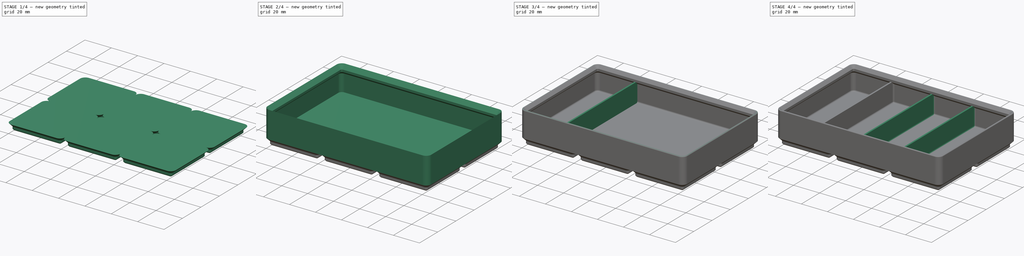
[diagram: build sequence overview — one tinted view per stage of 4, left to right]
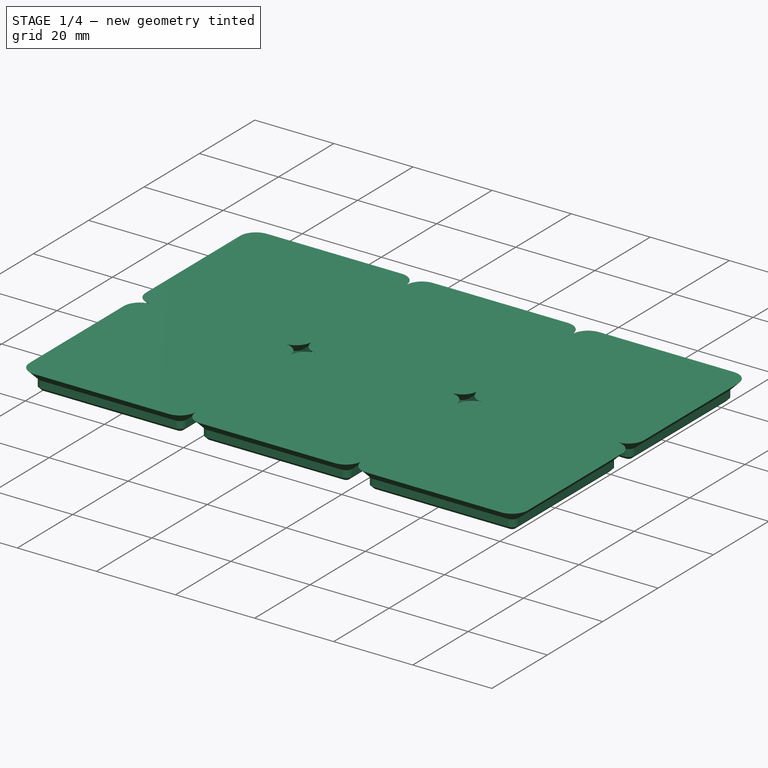
[diagram: stage 1 of 4 — iso view after this stage's code; geometry added in this stage tinted green]
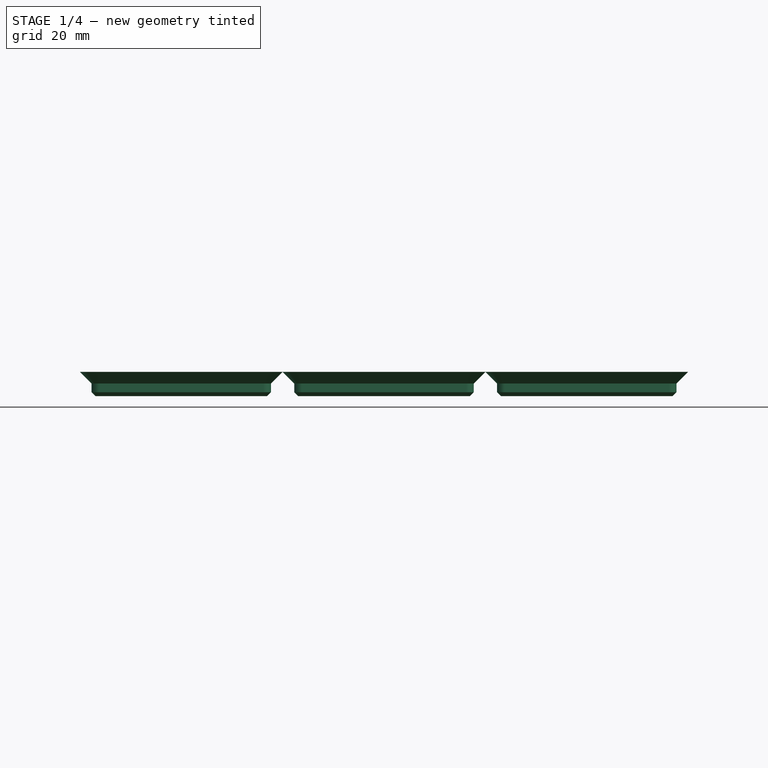
[diagram: stage 1 of 4 — front view after this stage's code; geometry added in this stage tinted green]
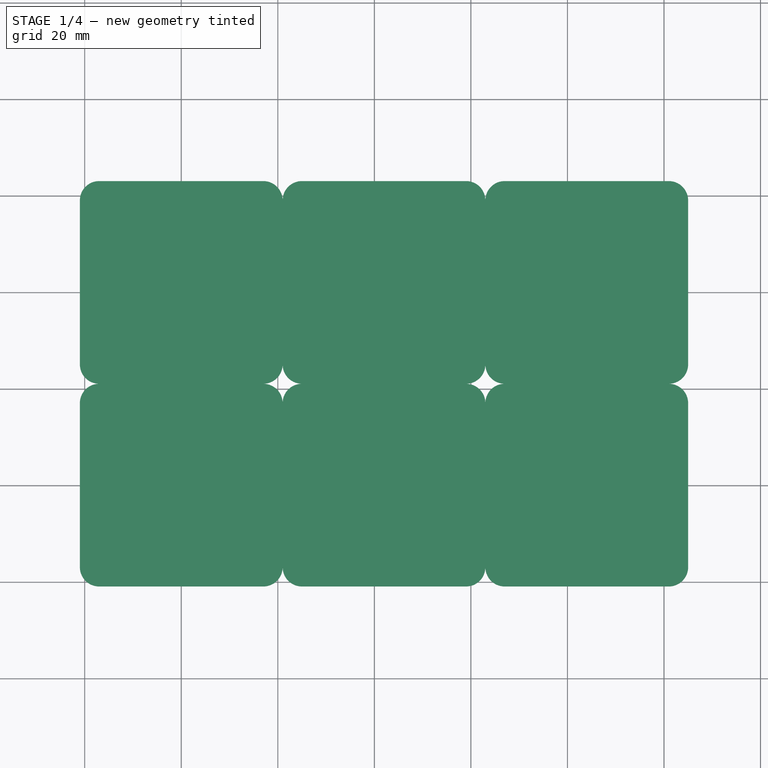
[diagram: stage 1 of 4 — top view after this stage's code; geometry added in this stage tinted green]
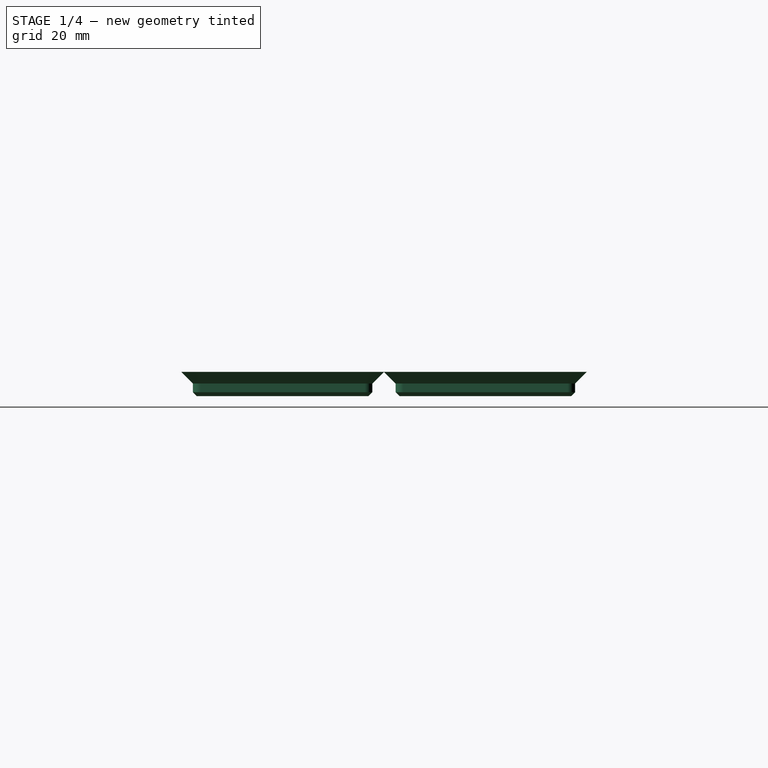
[diagram: stage 1 of 4 — right view after this stage's code; geometry added in this stage tinted green]
FCSTD DOCUMENT  (FreeCAD 2022.407R28576 (Git))
Label: Gridfinity
License: All rights reserved
LicenseURL: http://en.wikipedia.org/wiki/All_rights_reserved
objects: Sketcher::SketchObject×7, PartDesign::Pad×4, PartDesign::LinearPattern×3, PartDesign::Fillet×3, PartDesign::Line×2, PartDesign::Plane×2, Spreadsheet::Sheet×1, PartDesign::SubtractivePipe×1, PartDesign::MultiTransform×1, PartDesign::Pocket×1, PartDesign::AdditivePipe×1, PartDesign::Body×1, App::Part×1
note: 54 computed .brp shape members not serialized (recipe doc carries the construction recipe); baked Part::Feature solids carry a one-line shape summary decoded from their .brp

FEATURE [Sketcher::SketchObject] Sketch  label="ModuleBase"
  FullyConstrained = true
  MapMode = 5
  Support = -> [XY_Plane]
  TreeRank = 14
  expr: Constraints[8] = Spreadsheet.slotDimension
  expr: Constraints[9] = Spreadsheet.slotDimension
  sketch-geometry (4):
    g0: LineSegment StartX=-21 StartY=21 StartZ=0 EndX=21 EndY=21 EndZ=0
    g1: LineSegment StartX=21 StartY=21 StartZ=0 EndX=21 EndY=-21 EndZ=0
    g2: LineSegment StartX=21 StartY=-21 StartZ=0 EndX=-21 EndY=-21 EndZ=0
    g3: LineSegment StartX=-21 StartY=-21 StartZ=0 EndX=-21 EndY=21 EndZ=0
  constraints (11):
    c: Coincident(g0,g1)
    c: Coincident(g1,g2)
    c: Coincident(g2,g3)
    c: Coincident(g3,g0)
    c: Horizontal(g0)
    c: Horizontal(g2)
    c: Vertical(g1)
    c: Vertical(g3)
    c: DistanceX(g0,g0) = 42
    c: DistanceY(g1,g1) = 42
    c: Symmetric(g0,g1,g-1)
FEATURE [Spreadsheet::Sheet] Spreadsheet
  PythonMode = false
  ShowCells = 0
  TreeRank = 15
  cells = A1=slotsWide; B1(slotsWide)=3; A2=slotsHigh; B2(slotsHigh)=0.5; A3=SlotsDeep; B3(SlotsDeep)=2; A4=slotDimension; B4(slotDimension)==42mm; A5=nestingDepth; B5(nestingDepth)==5mm; A6=nestingRimWidth; B6(nestingRimWidth)==2.4mm; A7=nestingClearance; B7(nestingClearance)==0.25mm; A8=cornerFillet; B8(cornerFillet)==4mm; A9=wallThickkness; B9(wallThickkness)==1.2mm; A10=nestingBottomFillet; B10(nestingBottomFillet)==0.8mm; A11=compartments; B11(compartments)=4; A12=compartmentOffset; B12(compartmentOffset)==(slotsWide * slotDimension - wallThickkness) / compartments; A13=compartmentInnerWidth; B13(compartmentInnerWidth)==compartmentOffset - wallThickkness; A14=comparmentSideFillet; B14(comparmentSideFillet)==1mm; A15=compartmentFrontFillet; B15(compartmentFrontFillet)==5mm; A16=topEdgeFillet; B16(topEdgeFillet)==0.6mm
FEATURE [PartDesign::Pad] Pad  label="ModuleBasePad"
  ClaimChildren = false
  Direction = (1,1,1)
  Fit = 0
  FitJoin = 0
  InnerFit = 0
  InnerFitJoin = 0
  InnerTaperAngle = 0
  InnerTaperAngleRev = 0
  Length = 5
  Length2 = 100
  Linearize = true
  NewSolid = false
  Profile = -> Sketch
  Refine = true
  Suppress = false
  TreeRank = 16
  Type = 0
  _ProfileBasedVersion = 1
  expr: Length = Spreadsheet.nestingDepth
FEATURE [Sketcher::SketchObject] Sketch001  label="nesting cutout"
  ExternalGeometry = -> [Pad]
  FullyConstrained = true
  MapMode = 5
  Placement = pos=(0,0,0) rot=(1,0,0;1.5708rad)
  Support = -> [XZ_Plane]
  TreeRank = 19
  expr: Constraints[14] = Spreadsheet.nestingBottomFillet
  expr: Constraints[8] = Spreadsheet.nestingRimWidth
  sketch-geometry (10):
    g0: LineSegment [constr] StartX=-21 StartY=5 StartZ=0 EndX=-21 EndY=-4.4e-15 EndZ=0
    g1: LineSegment StartX=-21 StartY=-4.7e-15 StartZ=0 EndX=-18.6 EndY=0 EndZ=0
    g2: LineSegment StartX=-18.6 StartY=0.8 StartZ=0 EndX=-18.6 EndY=2.6 EndZ=0
    g3: LineSegment StartX=-18.6 StartY=2.6 StartZ=0 EndX=-21 EndY=5 EndZ=0
    g4: LineSegment StartX=-18.6 StartY=0 StartZ=0 EndX=-17.8 EndY=0 EndZ=0
    g5: LineSegment StartX=-17.8 StartY=0 StartZ=0 EndX=-18.6 EndY=0.8 EndZ=0
    g6: LineSegment StartX=-21 StartY=5 StartZ=0 EndX=-26 EndY=5 EndZ=0
    g7: LineSegment StartX=-26 StartY=5 StartZ=0 EndX=-26 EndY=0 EndZ=0
    g8: LineSegment StartX=-26 StartY=0 StartZ=0 EndX=-21 EndY=0 EndZ=0
    g9: LineSegment [constr] StartX=-21 StartY=0 StartZ=0 EndX=-21 EndY=5 EndZ=0
  constraints (27):
    c: Coincident(g0,g-3)
    c: Coincident(g0,g-4)
    c: Coincident(g0,g1)
    c: PointOnObject(g1,g-1)
    c: Vertical(g2)
    c: Coincident(g2,g3)
    c: Coincident(g3,g0)
    c: Angle(g0,g3) = 0.785398
    c: DistanceX(g1,g1) = 2.4
    c: Coincident(g4,g1)
    c: Horizontal(g4)
    c: Coincident(g5,g4)
    c: Angle(g5,g4) = 0.785398
    c: Coincident(g2,g5)
    c: DistanceX(g4,g4) = 0.8
    c: Vertical(g1,g2)
    c: Coincident(g6,g7)
    c: Coincident(g7,g8)
    c: Coincident(g8,g9)
    c: Coincident(g9,g6)
    c: Horizontal(g6)
    c: Horizontal(g8)
    c: Vertical(g7)
    c: Vertical(g9)
    c: Coincident(g6,g3)
    c: PointOnObject(g7,g-1)
    c: Equal(g6,g9)
FEATURE [Sketcher::SketchObject] Sketch002  label="nesting path"
  ExternalGeometry = -> [Pad]
  FullyConstrained = true
  MapMode = 5
  Support = -> [XY_Plane]
  TreeRank = 18
  expr: Constraints[25] = Spreadsheet.cornerFillet
  sketch-geometry (12):
    g0: LineSegment StartX=-17 StartY=21 StartZ=0 EndX=17 EndY=21 EndZ=0
    g1: LineSegment StartX=21 StartY=17 StartZ=0 EndX=21 EndY=-17 EndZ=0
    g2: LineSegment StartX=17 StartY=-21 StartZ=0 EndX=-17 EndY=-21 EndZ=0
    g3: LineSegment StartX=-21 StartY=-17 StartZ=0 EndX=-21 EndY=17 EndZ=0
    g4: ArcOfCircle CenterX=-17 CenterY=17 CenterZ=0 NormalX=0 NormalY=0 NormalZ=1 AngleXU=0 Radius=4 StartAngle=1.5708 EndAngle=3.14159
    g5: GeomPoint [constr] X=-21 Y=21 Z=0
    g6: ArcOfCircle CenterX=17 CenterY=17 CenterZ=0 NormalX=0 NormalY=0 NormalZ=1 AngleXU=0 Radius=4 StartAngle=-9e-16 EndAngle=1.5708
    g7: GeomPoint [constr] X=21 Y=21 Z=0
    g8: ArcOfCircle CenterX=17 CenterY=-17 CenterZ=0 NormalX=0 NormalY=0 NormalZ=1 AngleXU=0 Radius=4 StartAngle=4.71239 EndAngle=6.28319
    g9: GeomPoint [constr] X=21 Y=-21 Z=0
    g10: ArcOfCircle CenterX=-17 CenterY=-17 CenterZ=0 NormalX=0 NormalY=0 NormalZ=1 AngleXU=0 Radius=4 StartAngle=3.14159 EndAngle=4.71239
    g11: GeomPoint [constr] X=-21 Y=-21 Z=0
  constraints (26):
    c: Horizontal(g0)
    c: Horizontal(g2)
    c: Vertical(g1)
    c: Vertical(g3)
    c: Coincident(g5,g-3)
    c: Coincident(g9,g-5)
    c: PointOnObject(g5,g0)
    c: PointOnObject(g5,g3)
    c: Tangent(g0,g4) = 1.5708
    c: Tangent(g3,g4) = 1.5708
    c: PointOnObject(g7,g0)
    c: PointOnObject(g7,g1)
    c: Tangent(g0,g6) = 1.5708
    c: Tangent(g1,g6) = 1.5708
    c: PointOnObject(g9,g1)
    c: PointOnObject(g9,g2)
    c: Tangent(g1,g8) = 1.5708
    c: Tangent(g2,g8) = 1.5708
    c: PointOnObject(g11,g2)
    c: PointOnObject(g11,g3)
    c: Tangent(g2,g10) = 1.5708
    c: Tangent(g3,g10) = 1.5708
    c: Equal(g8,g6)
    c: Equal(g6,g4)
    c: Equal(g4,g10)
    c: Radius(g4) = 4
FEATURE [PartDesign::SubtractivePipe] SubtractivePipe
  AuxilleryCurvelinear = true
  AuxillerySpineTangent = false
  BaseFeature = -> Pad
  Binormal = (0,0,0)
  ClaimChildren = false
  Fit = 0
  FitJoin = 0
  InnerFit = 0
  InnerFitJoin = 0
  Mode = 0
  NewSolid = false
  Profile = -> Sketch001
  Refine = true
  Spine = -> Sketch002
  SpineTangent = false
  Suppress = false
  Transformation = 0
  Transition = 1
  TreeRank = 20
  _ProfileBasedVersion = 1
FEATURE [PartDesign::Line] DatumLine  label="DatumLineX"
  AttacherType = Attacher::AttachEngineLine
  Length = 126
  MapMode = 16
  MinimumLength = 10
  Placement = pos=(0,0,0) rot=(0.57735,0.57735,0.57735;2.0944rad)
  ResizeMode = 0
  Support = -> [XY_Plane]
  TreeRank = 24
FEATURE [PartDesign::LinearPattern] LinearPattern  label="LinearBottomX"
  CopyShape = false
  Direction = -> DatumLine [Line]
  Length = 84
  NewSolid = false
  Occurrences = 3
  ParallelTransform = true
  Refine = true
  SubTransform = true
  Suppress = false
  TreeRank = 22
  expr: Length = Spreadsheet.slotDimension * (Spreadsheet.slotsWide - 1)
  expr: Occurrences = Spreadsheet.slotsWide
FEATURE [PartDesign::Line] DatumLine001  label="DatumLineY"
  AttacherType = Attacher::AttachEngineLine
  Length = 84
  MapMode = 17
  MinimumLength = 10
  Placement = pos=(0,0,0) rot=(1,0,0;1.5708rad)
  ResizeMode = 0
  Support = -> [XY_Plane]
  TreeRank = 25
FEATURE [PartDesign::LinearPattern] LinearPattern001  label="LinearBottomY"
  CopyShape = false
  Direction = -> DatumLine001 [Line]
  Length = 42
  NewSolid = false
  Occurrences = 2
  ParallelTransform = true
  Refine = true
  Reversed = true
  SubTransform = true
  Suppress = false
  TreeRank = 23
  expr: Length = Spreadsheet.slotDimension * (Spreadsheet.SlotsDeep - 1)
FEATURE [PartDesign::MultiTransform] MultiTransform  label="BottomArary"
  BaseFeature = -> SubtractivePipe
  CopyShape = false
  NewSolid = false
  OriginalSubs = -> [SubtractivePipe]
  Originals = -> [SubtractivePipe]
  ParallelTransform = true
  Refine = true
  SubTransform = false
  Suppress = false
  Transformations = -> [LinearPattern,LinearPattern001]
  TreeRank = 21
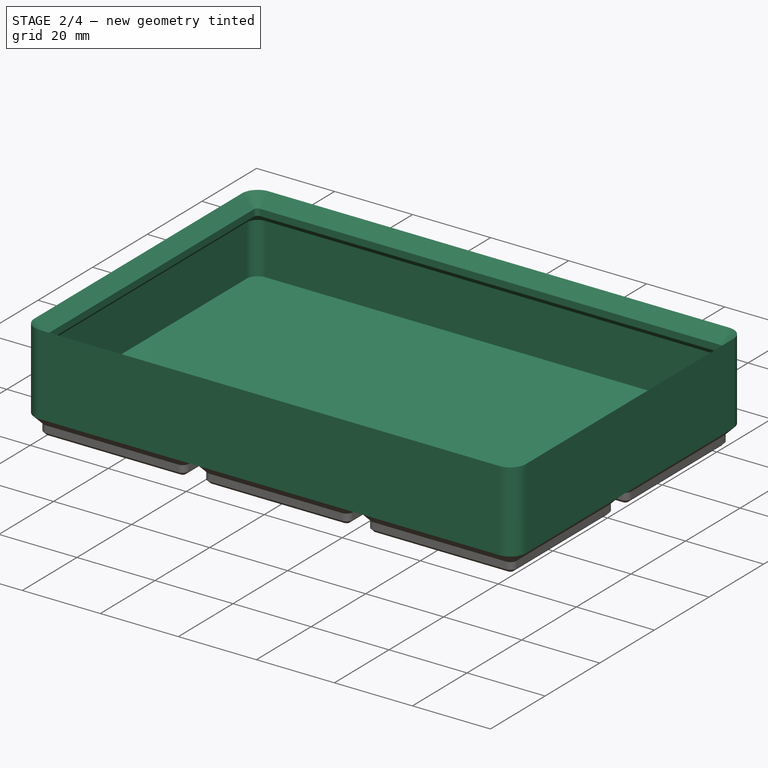
[diagram: stage 2 of 4 — iso view after this stage's code; geometry added in this stage tinted green]
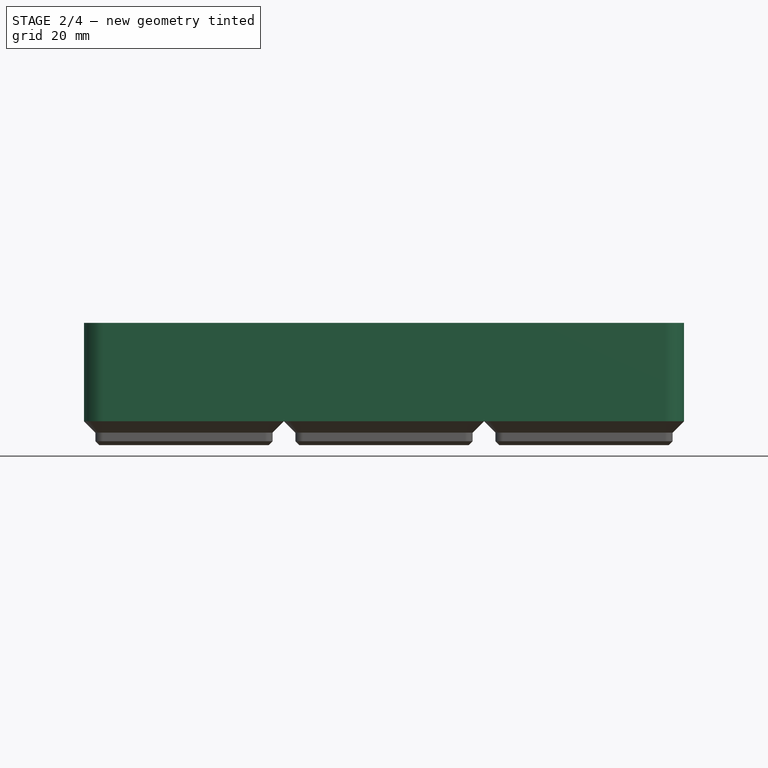
[diagram: stage 2 of 4 — front view after this stage's code; geometry added in this stage tinted green]
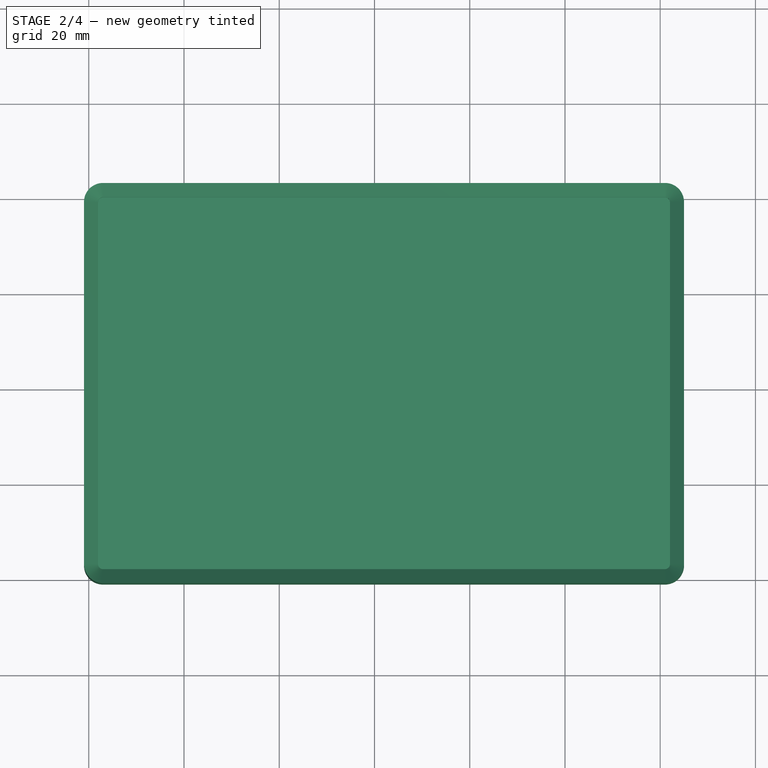
[diagram: stage 2 of 4 — top view after this stage's code; geometry added in this stage tinted green]
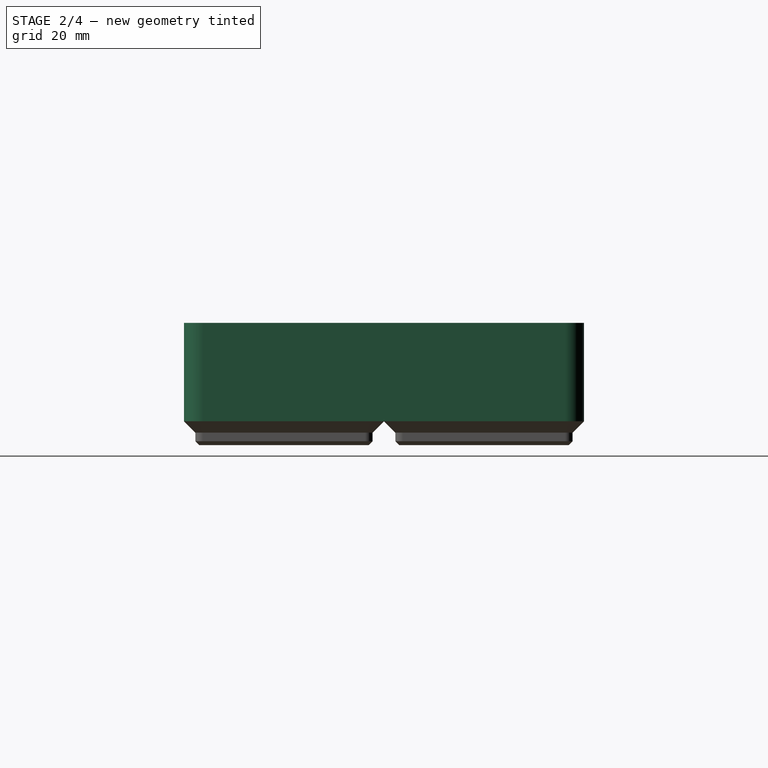
[diagram: stage 2 of 4 — right view after this stage's code; geometry added in this stage tinted green]
FEATURE [PartDesign::Plane] DatumPlane  label="BaseBoxDatumPlane"
  AttachmentOffset = pos=(-16,0,5) rot=(0,0,1;0rad)
  Length = 16
  MapMode = 2
  MinimumLength = 10
  MinimumWidth = 10
  Placement = pos=(-16,0,5) rot=(0,0,1;0rad)
  ResizeMode = 0
  Support = -> [XY_Plane]
  TreeRank = 26
  Width = 10
  expr: AttachmentOffset.Base.z = Spreadsheet.nestingDepth
FEATURE [Sketcher::SketchObject] Sketch003  label="BaseBoxSketch"
  ExternalGeometry = -> [Sketch]
  FullyConstrained = true
  MapMode = 5
  Placement = pos=(-16,0,5) rot=(0,0,1;0rad)
  Support = -> [DatumPlane]
  TreeRank = 27
  expr: Constraints[25] = Spreadsheet.cornerFillet
  expr: Constraints[4] = Spreadsheet.slotsWide * Spreadsheet.slotDimension
  expr: Constraints[5] = Spreadsheet.SlotsDeep * Spreadsheet.slotDimension
  sketch-geometry (12):
    g0: LineSegment StartX=-1 StartY=63 StartZ=0 EndX=117 EndY=63 EndZ=0
    g1: LineSegment StartX=121 StartY=59 StartZ=0 EndX=121 EndY=-17 EndZ=0
    g2: LineSegment StartX=117 StartY=-21 StartZ=0 EndX=-1 EndY=-21 EndZ=0
    g3: LineSegment StartX=-5 StartY=-17 StartZ=0 EndX=-5 EndY=59 EndZ=0
    g4: ArcOfCircle CenterX=-1 CenterY=59 CenterZ=0 NormalX=0 NormalY=0 NormalZ=1 AngleXU=0 Radius=4 StartAngle=1.5708 EndAngle=3.14159
    g5: GeomPoint [constr] X=-5 Y=63 Z=0
    g6: ArcOfCircle CenterX=117 CenterY=59 CenterZ=0 NormalX=0 NormalY=0 NormalZ=1 AngleXU=0 Radius=4 StartAngle=0 EndAngle=1.5708
    g7: GeomPoint [constr] X=121 Y=63 Z=0
    g8: ArcOfCircle CenterX=117 CenterY=-17 CenterZ=0 NormalX=0 NormalY=0 NormalZ=1 AngleXU=0 Radius=4 StartAngle=4.71239 EndAngle=6.28319
    g9: GeomPoint [constr] X=121 Y=-21 Z=0
    g10: ArcOfCircle CenterX=-1 CenterY=-17 CenterZ=0 NormalX=0 NormalY=0 NormalZ=1 AngleXU=0 Radius=4 StartAngle=3.14159 EndAngle=4.71239
    g11: GeomPoint [constr] X=-5 Y=-21 Z=0
  constraints (27):
    c: Horizontal(g0)
    c: Horizontal(g2)
    c: Vertical(g1)
    c: Vertical(g3)
    c: DistanceX(g5,g7) = 126
    c: DistanceY(g11,g5) = 84
    c: PointOnObject(g5,g0)
    c: PointOnObject(g5,g3)
    c: Tangent(g0,g4) = 1.5708
    c: Tangent(g3,g4) = 1.5708
    c: PointOnObject(g7,g0)
    c: PointOnObject(g7,g1)
    c: Tangent(g0,g6) = 1.5708
    c: Tangent(g1,g6) = 1.5708
    c: PointOnObject(g9,g1)
    c: PointOnObject(g9,g2)
    c: Tangent(g1,g8) = 1.5708
    c: Tangent(g2,g8) = 1.5708
    c: PointOnObject(g11,g3)
    c: PointOnObject(g11,g2)
    c: Tangent(g3,g10) = 1.5708
    c: Tangent(g2,g10) = 1.5708
    c: Equal(g10,g4)
    c: Equal(g4,g6)
    c: Equal(g6,g8)
    c: Radius(g4) = 4
    c: Coincident(g11,g-4)
FEATURE [PartDesign::Pad] Pad001  label="BaseBoxPAd"
  BaseFeature = -> MultiTransform
  ClaimChildren = false
  Direction = (1,1,1)
  Fit = 0
  FitJoin = 0
  InnerFit = 0
  InnerFitJoin = 0
  InnerTaperAngle = 0
  InnerTaperAngleRev = 0
  Length = 16
  Length2 = 100
  Linearize = true
  NewSolid = false
  Profile = -> Sketch003
  Refine = true
  Suppress = false
  TreeRank = 28
  Type = 0
  _ProfileBasedVersion = 1
  expr: Length = Spreadsheet.slotsHigh * Spreadsheet.slotDimension - Spreadsheet.nestingDepth
FEATURE [PartDesign::Pocket] Pocket  label="BaseBoxHollowPocket"
  BaseFeature = -> Pad001
  ClaimChildren = false
  Fit = -1.2
  FitJoin = 0
  InnerFit = 3
  InnerFitJoin = 0
  InnerTaperAngle = 0
  InnerTaperAngleRev = 0
  Length = 14.8
  Length2 = 100
  Linearize = true
  NewSolid = false
  Profile = -> Pad001 [Face42]
  Refine = true
  Suppress = false
  TreeRank = 29
  Type = 0
  _ProfileBasedVersion = 1
  expr: Fit = -Spreadsheet.wallThickkness
  expr: Length = Spreadsheet.slotsHigh * Spreadsheet.slotDimension - Spreadsheet.wallThickkness - Spreadsheet.nestingDepth
FEATURE [Sketcher::SketchObject] Sketch004  label="UpperEdgeProfile"
  ExternalGeometry = -> [Pocket]
  FullyConstrained = true
  MapMode = 5
  Placement = pos=(0,0,0) rot=(1,0,0;1.5708rad)
  Support = -> [XZ_Plane]
  TreeRank = 30
  expr: Constraints[15] = Spreadsheet.nestingClearance
  expr: Constraints[16] = Spreadsheet.nestingClearance
  expr: Constraints[21] = 45
  expr: Constraints[4] = Spreadsheet.nestingDepth
  expr: Constraints[5] = Spreadsheet.nestingBottomFillet
  sketch-geometry (15):
    g0: LineSegment [constr] StartX=-21 StartY=26 StartZ=0 EndX=-17.8 EndY=22.8 EndZ=0
    g1: LineSegment [constr] StartX=-17.8 StartY=22.8 StartZ=0 EndX=-17.8 EndY=21.8 EndZ=0
    g2: LineSegment [constr] StartX=-17.8 StartY=21.8 StartZ=0 EndX=-17 EndY=21 EndZ=0
    g3: GeomPoint [constr] X=-17.8 Y=21 Z=0
    g4: LineSegment StartX=-18.05 StartY=21 StartZ=0 EndX=-18.05 EndY=21.8 EndZ=0
    g5: LineSegment StartX=-18.05 StartY=21.8 StartZ=0 EndX=-18.05 EndY=22.6964 EndZ=0
    g6: LineSegment StartX=-18.05 StartY=22.6964 StartZ=0 EndX=-21 EndY=25.6464 EndZ=0
    g7: LineSegment StartX=-21 StartY=25.6464 StartZ=0 EndX=-21 EndY=21 EndZ=0
    g8: LineSegment [constr] StartX=-21 StartY=21 StartZ=0 EndX=-18.05 EndY=21 EndZ=0
    g9: LineSegment [constr] StartX=-21 StartY=25.6464 StartZ=0 EndX=-21 EndY=26 EndZ=0
    g10: LineSegment [constr] StartX=-18.05 StartY=21 StartZ=0 EndX=-17 EndY=21 EndZ=0
    g11: GeomPoint [constr] X=-21 Y=18.05 Z=0
    g12: GeomPoint [constr] X=-21 Y=21 Z=0
    g13: LineSegment StartX=-21 StartY=21 StartZ=0 EndX=-21 EndY=18.05 EndZ=0
    g14: LineSegment StartX=-21 StartY=18.05 StartZ=0 EndX=-18.05 EndY=21 EndZ=0
  constraints (36):
    c: Coincident(g0,g1)
    c: Vertical(g1)
    c: Coincident(g1,g2)
    c: Coincident(g2,g-3)
    c: DistanceY(g-4,g0) = 5
    c: Distance(g3,g-3) = 0.8
    c: Vertical(g3,g1)
    c: Coincident(g4,g5)
    c: Vertical(g5)
    c: Coincident(g5,g6)
    c: Coincident(g6,g7)
    c: Coincident(g7,g-4)
    c: Coincident(g7,g8)
    c: Coincident(g8,g4)
    c: Parallel(g0,g6)
    c: Distance(g1,g5) = 0.25
    c: Distance(g5,g0) = 0.25
    c: Coincident(g9,g6)
    c: Coincident(g9,g0)
    c: Vertical(g9)
    c: Parallel(g9,g7)
    c: Angle(g9,g0) = 0.785398
    c: Coincident(g10,g4)
    c: Coincident(g10,g-3)
    c: Horizontal(g10)
    c: Angle(g2,g10) = 0.785398
    c: Coincident(g12,g7)
    c: Vertical(g11,g7)
    c: Coincident(g13,g7)
    c: Coincident(g13,g11)
    c: Coincident(g14,g11)
    c: Coincident(g14,g4)
    c: Angle(g8,g14) = 0.785398
    c: Vertical(g4,g4)
    c: Horizontal(g2,g5)
    c: PointOnObject(g3,g10)
FEATURE [PartDesign::AdditivePipe] AdditivePipe  label="UpperEdgeSwipe"
  AuxilleryCurvelinear = true
  AuxillerySpineTangent = false
  BaseFeature = -> Pocket
  Binormal = (0,0,0)
  ClaimChildren = false
  Fit = 0
  FitJoin = 0
  InnerFit = 0
  InnerFitJoin = 0
  Mode = 0
  NewSolid = false
  Profile = -> Sketch004
  Refine = true
  Spine = -> Sketch003
  SpineTangent = false
  Suppress = false
  Transformation = 0
  Transition = 1
  TreeRank = 31
  _ProfileBasedVersion = 1
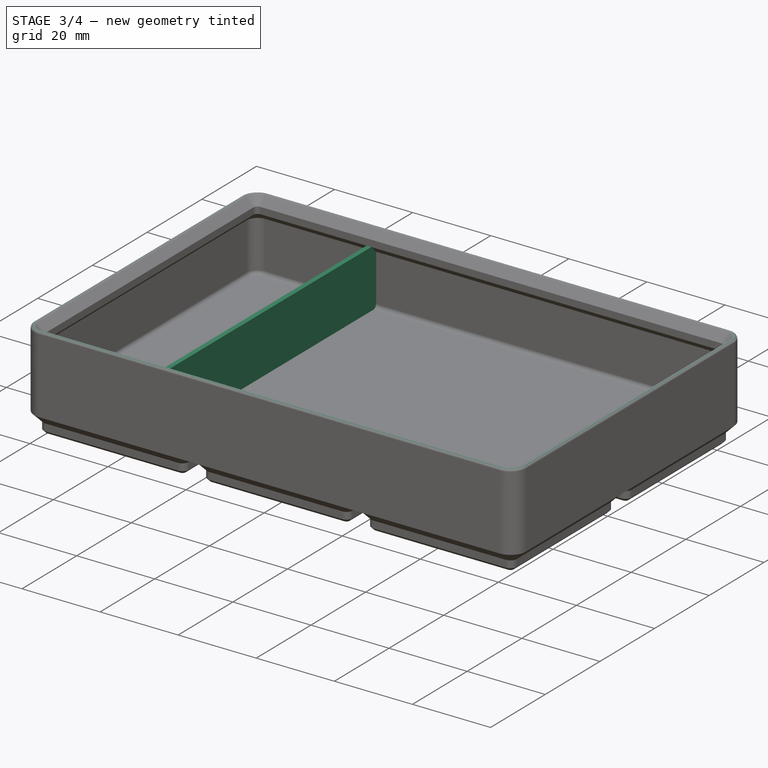
[diagram: stage 3 of 4 — iso view after this stage's code; geometry added in this stage tinted green]
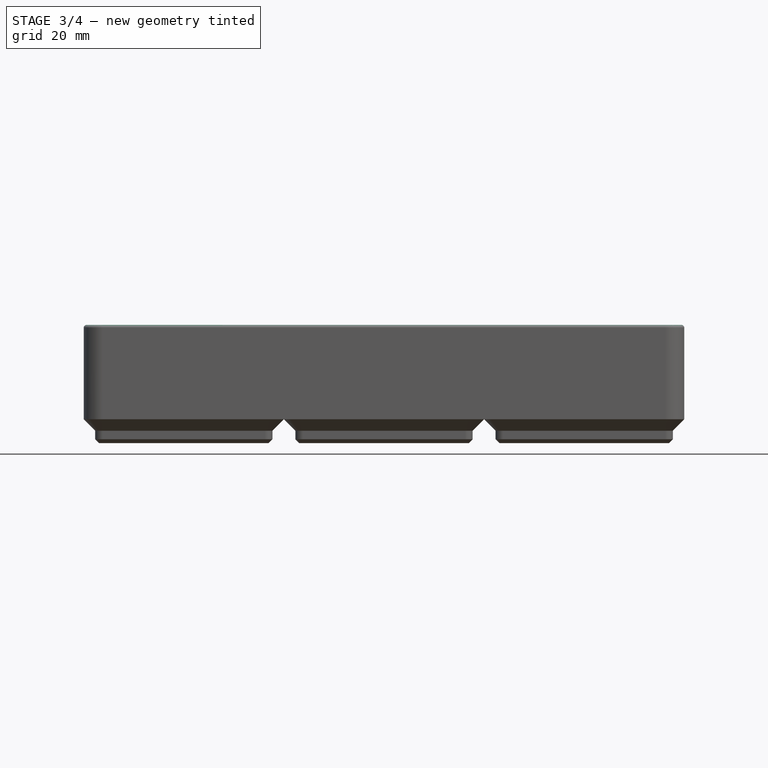
[diagram: stage 3 of 4 — front view after this stage's code; geometry added in this stage tinted green]
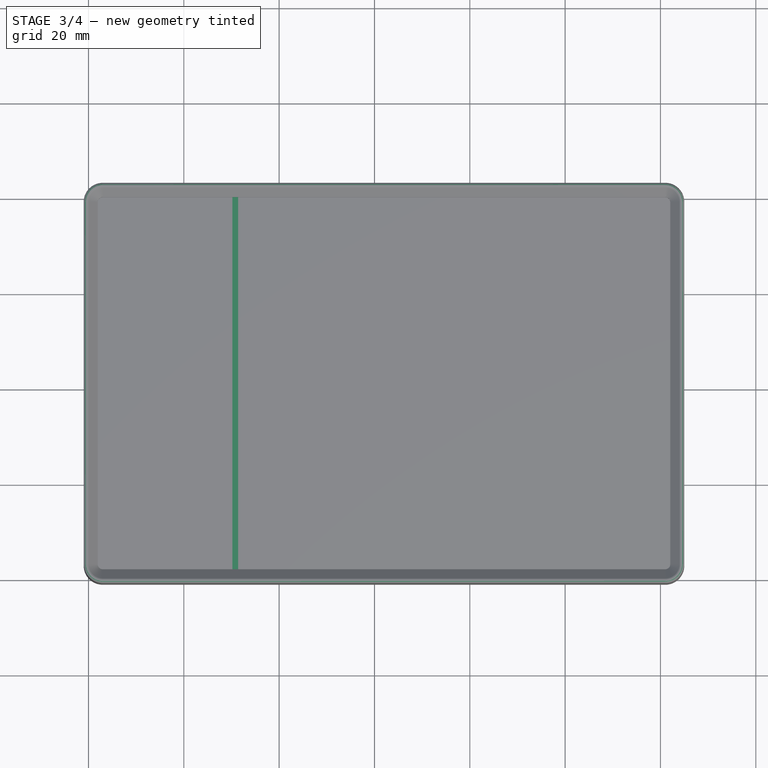
[diagram: stage 3 of 4 — top view after this stage's code; geometry added in this stage tinted green]
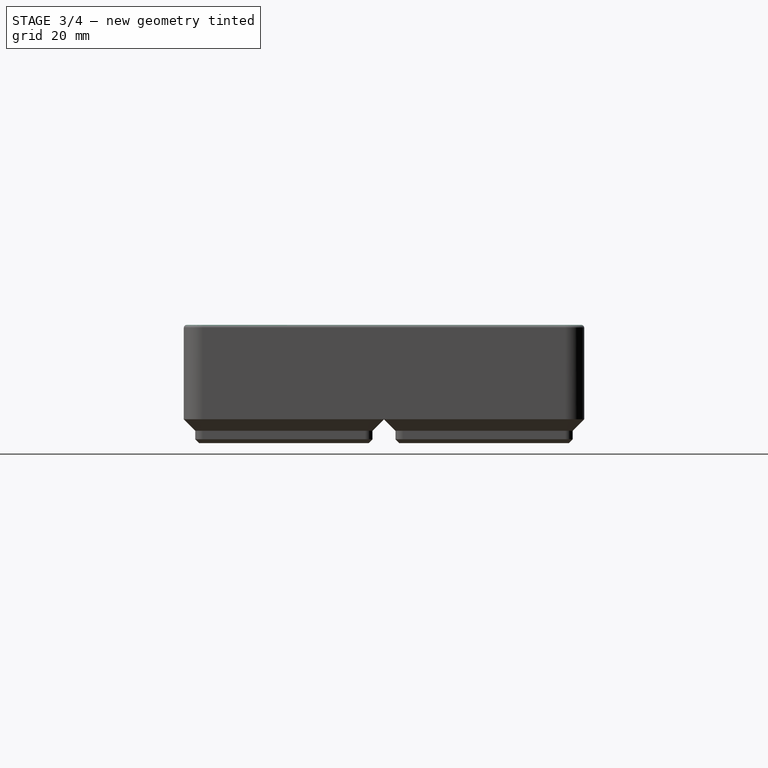
[diagram: stage 3 of 4 — right view after this stage's code; geometry added in this stage tinted green]
FEATURE [PartDesign::Fillet] Fillet  label="UpperEdgeFillet"
  Base = -> AdditivePipe [Edge351]
  BaseFeature = -> AdditivePipe
  NewSolid = false
  Radius = 0.6
  Refine = true
  SupportTransform = false
  Suppress = false
  TreeRank = 32
FEATURE [Sketcher::SketchObject] Sketch005
  ExternalGeometry = -> [Sketch003]
  FullyConstrained = true
  MapMode = 5
  Placement = pos=(-16,0,5) rot=(0,0,1;0rad)
  Support = -> [DatumPlane]
  TreeRank = 33
  expr: Constraints[10] = Spreadsheet.wallThickkness
  expr: Constraints[13] = Spreadsheet.compartmentOffset
  sketch-geometry (6):
    g0: LineSegment StartX=26.2 StartY=63 StartZ=0 EndX=27.4 EndY=63 EndZ=0
    g1: LineSegment StartX=27.4 StartY=63 StartZ=0 EndX=27.4 EndY=-21 EndZ=0
    g2: LineSegment StartX=27.4 StartY=-21 StartZ=0 EndX=26.2 EndY=-21 EndZ=0
    g3: LineSegment StartX=26.2 StartY=-21 StartZ=0 EndX=26.2 EndY=63 EndZ=0
    g4: GeomPoint X=-5 Y=63 Z=0
    g5: GeomPoint [constr] X=121 Y=63 Z=0
  constraints (17):
    c: Coincident(g0,g1)
    c: Coincident(g1,g2)
    c: Coincident(g2,g3)
    c: Coincident(g3,g0)
    c: Horizontal(g0)
    c: Horizontal(g2)
    c: Vertical(g1)
    c: Vertical(g3)
    c: PointOnObject(g0,g-3)
    c: PointOnObject(g1,g-5)
    c: DistanceX(g2,g2) = 1.2
    c: Vertical(g-4,g4)
    c: Horizontal(g-3,g4)
    c: DistanceX(g4,g0) = 31.2
    c: Horizontal(g5,g-3)
    c: Vertical(g5,g-6)
    c: DistanceX(g0,g5) = 93.6
FEATURE [PartDesign::Fillet] Fillet002  label="InnerBottomEdgeFillet"
  Base = -> Fillet [Edge341]
  BaseFeature = -> Fillet
  NewSolid = false
  Radius = 1
  Refine = true
  SupportTransform = false
  Suppress = false
  TreeRank = 36
FEATURE [PartDesign::Pad] Pad002
  BaseFeature = -> Fillet002
  ClaimChildren = false
  Direction = (1,1,1)
  Fit = 0
  FitJoin = 0
  InnerFit = 0
  InnerFitJoin = 0
  InnerTaperAngle = 0
  InnerTaperAngleRev = 0
  Length = 16
  Length2 = 100
  Linearize = true
  NewSolid = false
  Profile = -> Sketch005
  Refine = true
  Suppress = false
  TreeRank = 34
  Type = 0
  _ProfileBasedVersion = 1
  expr: Length = Spreadsheet.slotsHigh * Spreadsheet.slotDimension - Spreadsheet.nestingDepth
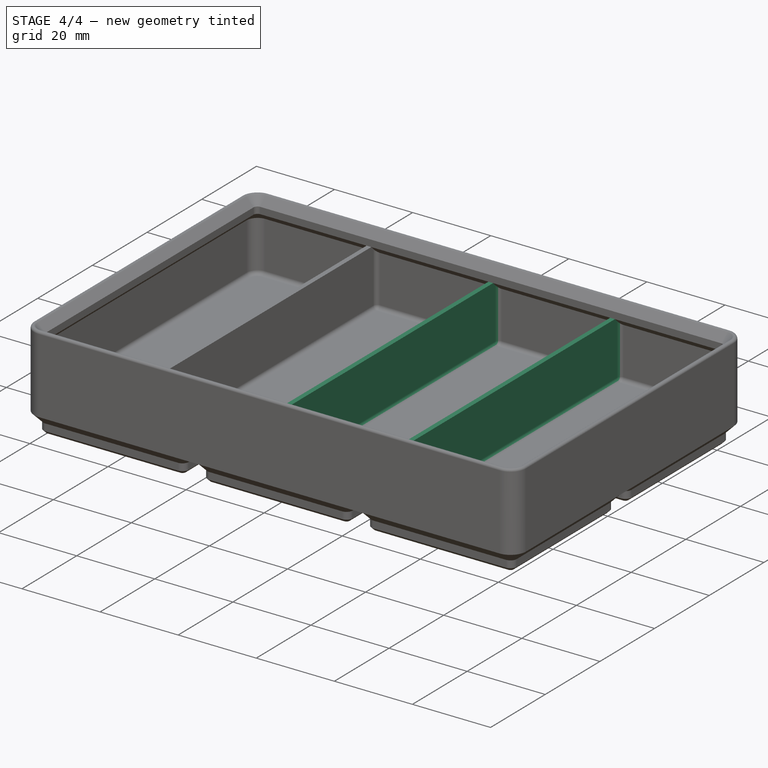
[diagram: stage 4 of 4 — iso view after this stage's code; geometry added in this stage tinted green]
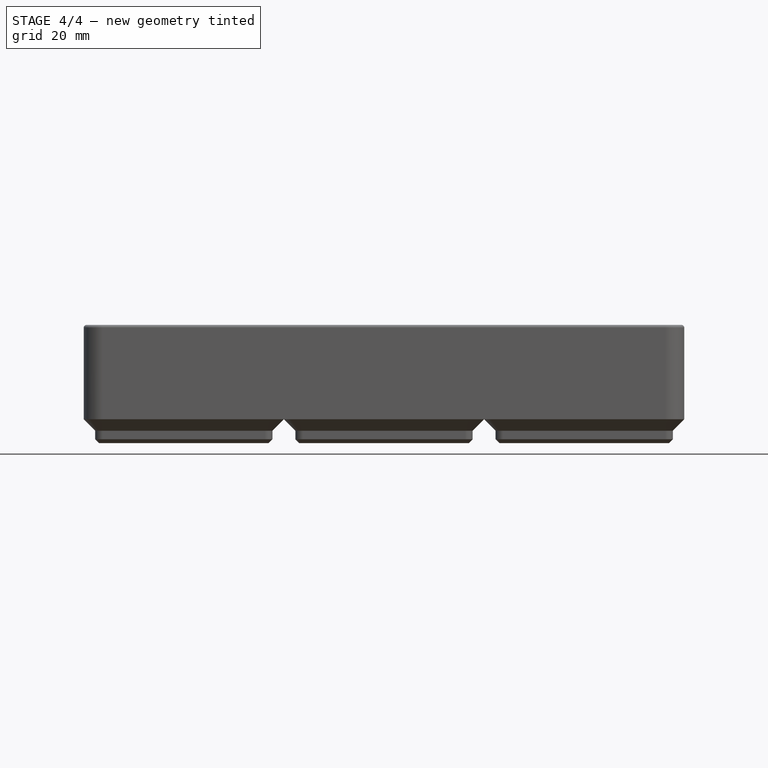
[diagram: stage 4 of 4 — front view after this stage's code; geometry added in this stage tinted green]
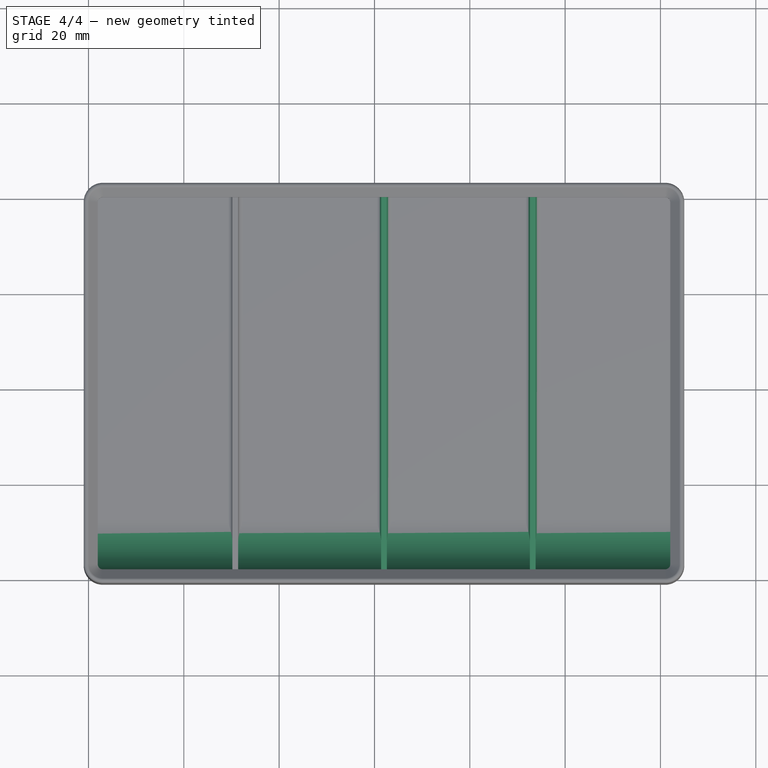
[diagram: stage 4 of 4 — top view after this stage's code; geometry added in this stage tinted green]
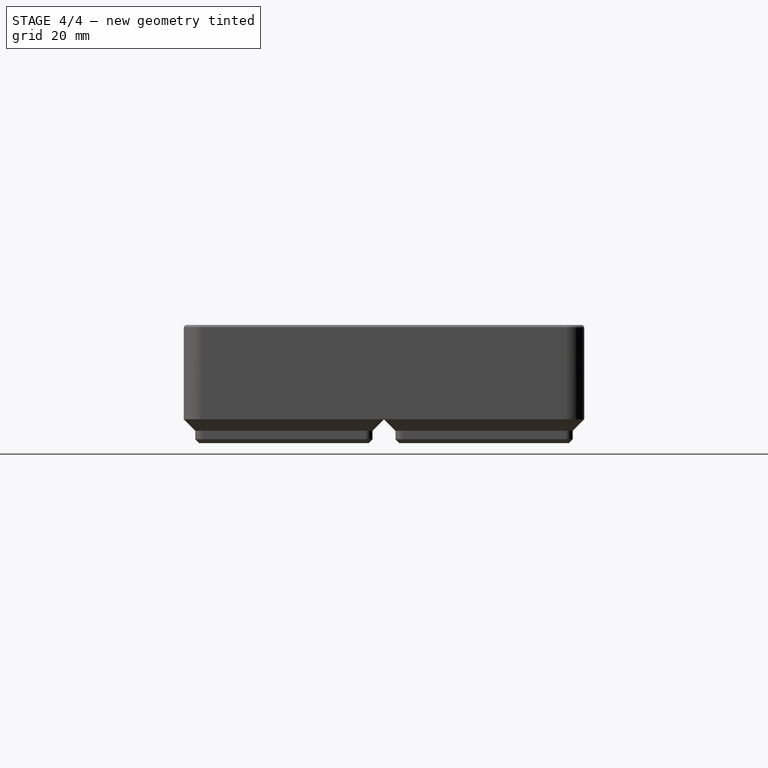
[diagram: stage 4 of 4 — right view after this stage's code; geometry added in this stage tinted green]
FEATURE [PartDesign::Fillet] Fillet001
  Base = -> Pad002 [Edge103,Edge51]
  BaseFeature = -> Pad002
  NewSolid = false
  Radius = 1
  Refine = true
  SupportTransform = false
  Suppress = false
  TreeRank = 35
FEATURE [PartDesign::LinearPattern] LinearPattern002
  BaseFeature = -> Fillet001
  CopyShape = false
  Direction = -> Sketch005 [H_Axis]
  Length = 62.4
  NewSolid = false
  Occurrences = 3
  OriginalSubs = -> [Fillet001,Pad002]
  Originals = -> [Fillet001,Pad002]
  ParallelTransform = true
  Refine = true
  SubTransform = true
  Suppress = false
  TreeRank = 37
  expr: Length = (Spreadsheet.compartments - 2) * Spreadsheet.compartmentOffset
  expr: Occurrences = Spreadsheet.compartments - 1
FEATURE [PartDesign::Plane] DatumPlane001  label="LeftSideDatumPlane"
  AttachmentOffset = pos=(0,0,-19.8) rot=(0,0,1;0rad)
  Length = 84
  MapMode = 2
  MinimumLength = 10
  MinimumWidth = 10
  Placement = pos=(-19.8,4.4e-15,-4.4e-15) rot=(0.57735,0.57735,0.57735;2.0944rad)
  ResizeMode = 0
  Support = -> [YZ_Plane]
  TreeRank = 40
  Width = 24.7979
  expr: AttachmentOffset.Base.z = -(Spreadsheet.slotDimension / 2 - Spreadsheet.wallThickkness)
FEATURE [Sketcher::SketchObject] Sketch006  label="FrontFilletProfile"
  ExternalGeometry = -> [Pocket,Fillet]
  FullyConstrained = true
  MapMode = 5
  Placement = pos=(-19.8,4.4e-15,-4.4e-15) rot=(0.57735,0.57735,0.57735;2.0944rad)
  Support = -> [DatumPlane001]
  TreeRank = 38
  expr: Constraints[4] = Spreadsheet.slotDimension / 4
  sketch-geometry (7):
    g0: LineSegment StartX=-18.05 StartY=6.2 StartZ=0 EndX=-7.55 EndY=6.2 EndZ=0
    g1: LineSegment [constr] StartX=-18.05 StartY=6.2 StartZ=0 EndX=-18.05 EndY=16.7 EndZ=0
    g2: ArcOfCircle CenterX=-7.55 CenterY=16.7 CenterZ=0 NormalX=0 NormalY=0 NormalZ=1 AngleXU=0 Radius=10.5 StartAngle=3.14159 EndAngle=4.71239
    g3: LineSegment StartX=-18.05 StartY=16.7 StartZ=0 EndX=-18.05 EndY=21 EndZ=0
    g4: LineSegment StartX=-18.05 StartY=21 StartZ=0 EndX=-19.8 EndY=21 EndZ=0
    g5: LineSegment StartX=-19.8 StartY=21 StartZ=0 EndX=-19.8 EndY=6.2 EndZ=0
    g6: LineSegment StartX=-19.8 StartY=6.2 StartZ=0 EndX=-18.05 EndY=6.2 EndZ=0
  constraints (18):
    c: PointOnObject(g0,g-4)
    c: Coincident(g2,g0)
    c: Horizontal(g2,g1)
    c: Vertical(g2,g0)
    c: Radius(g2) = 10.5
    c: Coincident(g1,g0)
    c: Coincident(g2,g1)
    c: Vertical(g1)
    c: Coincident(g3,g1)
    c: Vertical(g3)
    c: Coincident(g4,g3)
    c: Coincident(g4,g-3)
    c: Coincident(g5,g4)
    c: Coincident(g5,g-3)
    c: Coincident(g6,g5)
    c: Coincident(g6,g0)
    c: Horizontal(g6)
    c: Coincident(g3,g-6)
FEATURE [PartDesign::Pad] Pad003  label="FrontFillet"
  BaseFeature = -> LinearPattern002
  ClaimChildren = false
  Direction = (1,1,1)
  Fit = 0
  FitJoin = 0
  InnerFit = 0
  InnerFitJoin = 0
  InnerTaperAngle = 0
  InnerTaperAngleRev = 0
  Length = 123.6
  Length2 = 100
  Linearize = true
  NewSolid = false
  Profile = -> Sketch006
  Refine = true
  Suppress = false
  TreeRank = 39
  Type = 0
  _ProfileBasedVersion = 1
  expr: Length = Spreadsheet.slotsWide * Spreadsheet.slotDimension - 2 * Spreadsheet.wallThickkness
FEATURE [PartDesign::Body] Body
  AutoGroupSolids = false
  ExportMode = 0
  Group = -> [Sketch,DatumLine,DatumLine001,DatumPlane,DatumPlane001,Pad,Sketch001,Sketch002,SubtractivePipe,MultiTransform,LinearPattern,LinearPattern001,Sketch003,Pad001,Pocket,Sketch004,AdditivePipe,Fillet,Sketch005,Fillet002,Pad002,Fillet001,LinearPattern002,Sketch006,Pad003]
  Origin = -> Origin001
  Tip = -> Pad003
  TreeRank = 13
  _ExportChildren = -> [DatumLine,DatumLine001,DatumPlane,DatumPlane001,Pad,SubtractivePipe,MultiTransform,Pad001,Pocket,AdditivePipe,Fillet,Fillet002,Pad002,Fillet001,LinearPattern002,Pad003]
  _GroupVersion = 1
FEATURE [App::Part] Part
  ExportMode = 1
  Group = -> [Body]
  Origin = -> Origin
  TreeRank = 3
  _ExportChildren = -> [Body]
  _GroupVersion = 1
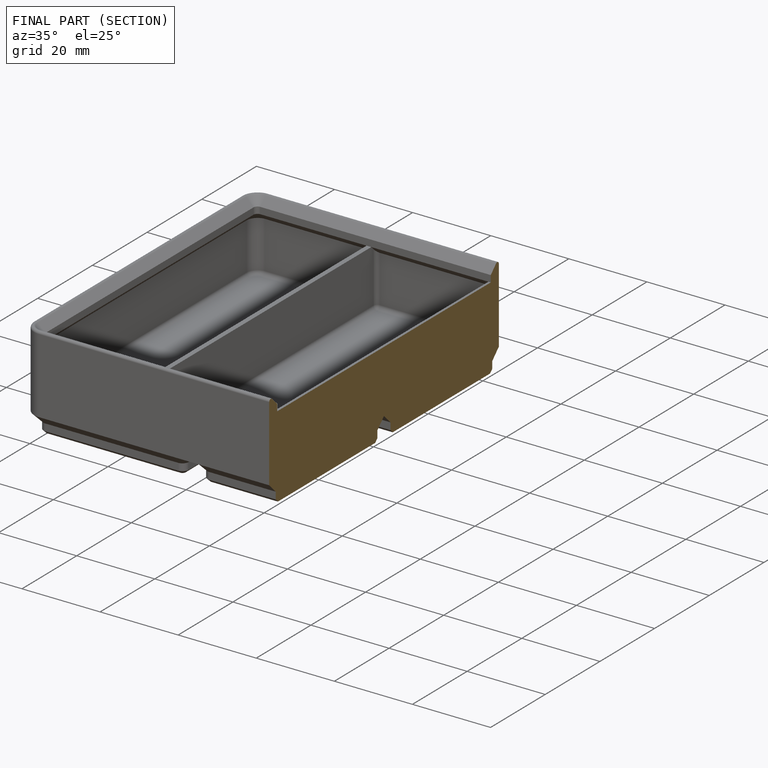
[diagram: finished part — half-section view (interior)]
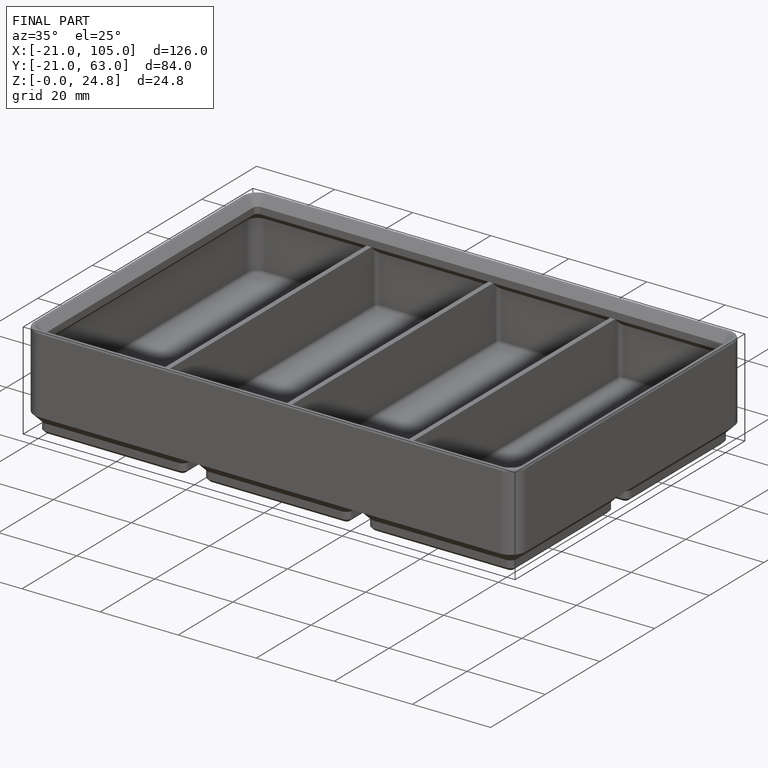
[diagram: finished part — iso view with bounding-box wireframe]
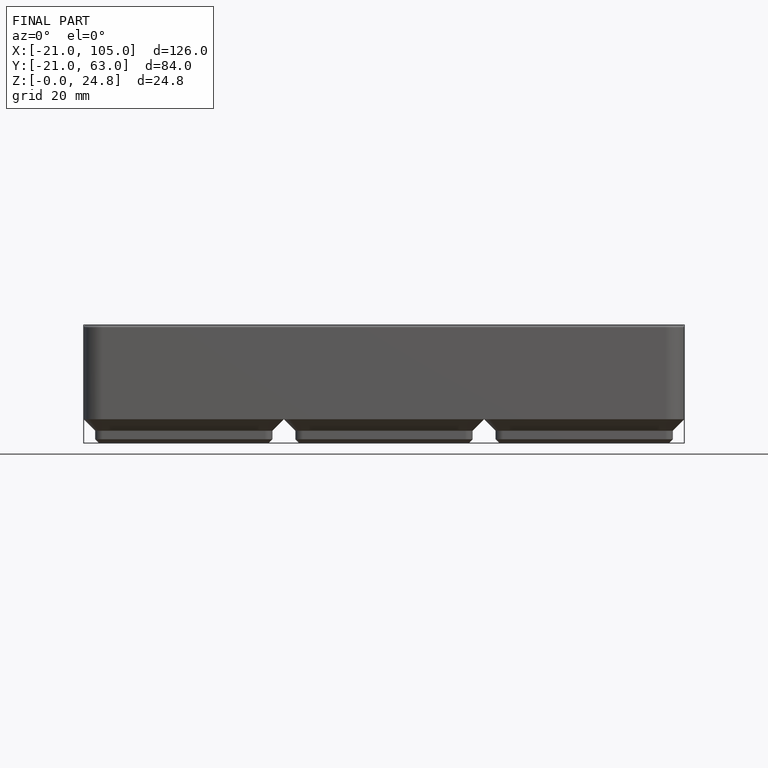
[diagram: finished part — front view with bounding-box wireframe]
